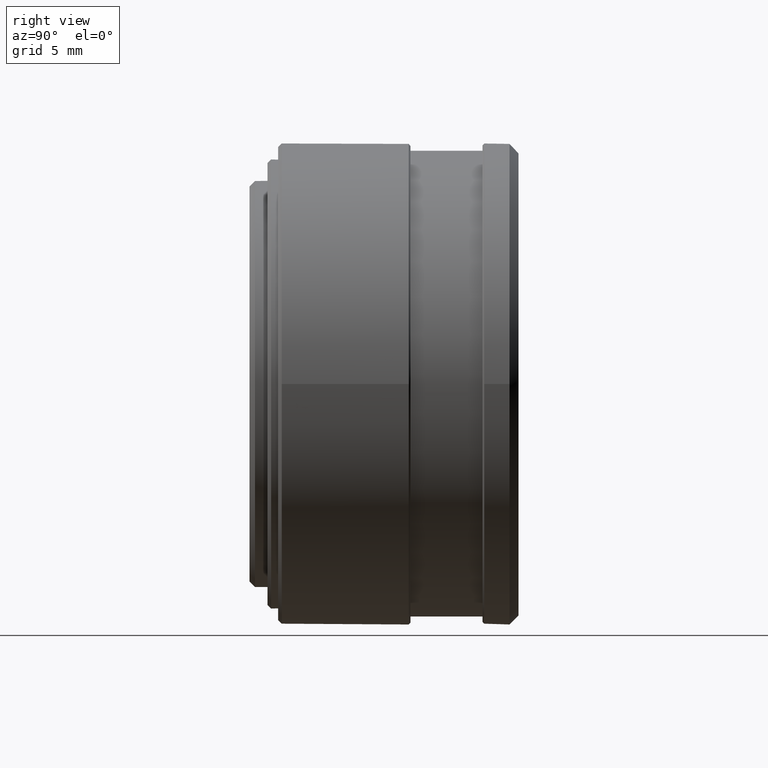
[diagram: clean part render]
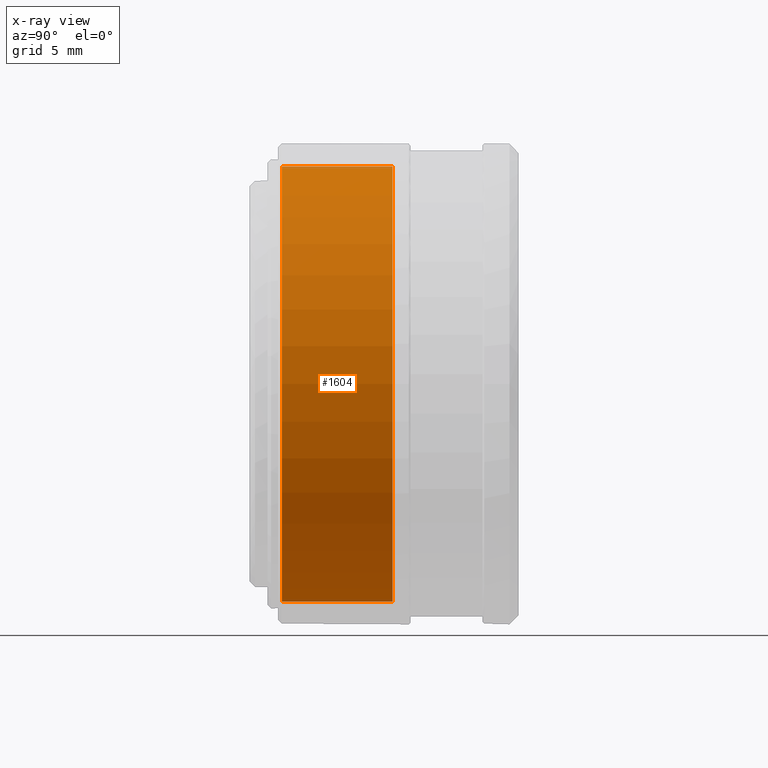
[diagram: x-ray — body ghosted, one internal face saturated and labeled with its STEP entity id]
A machine part, right view, then the same camera in x-ray: the body is ghosted and one INTERNAL B-rep face — a face not visible from any outside direction — is saturated and labeled: STEP entity #1604.
In plain terms, the highlighted cylindrical surface (bore or boss wall) has radius 12.095 mm, axis along (0, 1, 0).
Its self-contained STEP definition (entity closure, byte-faithful):
#73 = CARTESIAN_POINT ( 'NONE',  ( 12.09500000000000242, 0.1999993410000001082, 0.000000000000000000 ) ) ;
#99 = DIRECTION ( 'NONE',  ( 0.000000000000000000, 0.000000000000000000, 1.000000000000000000 ) ) ;
#126 = CARTESIAN_POINT ( 'NONE',  ( 0.000000000000000000, 0.1999993410000122651, 0.000000000000000000 ) ) ;
#127 = AXIS2_PLACEMENT_3D ( 'NONE', #1064, #1600, #99 ) ;
#536 = DIRECTION ( 'NONE',  ( 1.000000000000000000, -1.006214914109118216E-15, 0.000000000000000000 ) ) ;
#538 = EDGE_LOOP ( 'NONE', ( #656 ) ) ;
#567 = CIRCLE ( 'NONE', #127, 12.09500000000000242 ) ;
#656 = ORIENTED_EDGE ( 'NONE', *, *, #1246, .F. ) ;
#658 = CIRCLE ( 'NONE', #996, 12.09500000000000242 ) ;
#690 = AXIS2_PLACEMENT_3D ( 'NONE', #959, #1096, #788 ) ;
#788 = DIRECTION ( 'NONE',  ( 0.000000000000000000, 0.000000000000000000, 1.000000000000000000 ) ) ;
#895 = VERTEX_POINT ( 'NONE', #1167 ) ;
#935 = DIRECTION ( 'NONE',  ( -0.000000000000000000, 1.000000000000000000, -0.000000000000000000 ) ) ;
#937 = ORIENTED_EDGE ( 'NONE', *, *, #1075, .T. ) ;
#942 = FACE_OUTER_BOUND ( 'NONE', #1710, .T. ) ;
#959 = CARTESIAN_POINT ( 'NONE',  ( 0.000000000000000000, 0.1999993410000001082, 0.000000000000000000 ) ) ;
#996 = AXIS2_PLACEMENT_3D ( 'NONE', #126, #935, #536 ) ;
#1064 = CARTESIAN_POINT ( 'NONE',  ( 0.000000000000000000, 6.361292002000001666, 0.000000000000000000 ) ) ;
#1075 = EDGE_CURVE ( 'NONE', #895, #895, #567, .T. ) ;
#1096 = DIRECTION ( 'NONE',  ( 0.000000000000000000, 1.000000000000000000, 0.000000000000000000 ) ) ;
#1167 = CARTESIAN_POINT ( 'NONE',  ( 0.000000000000000000, 6.361292002000001666, 12.09500000000000242 ) ) ;
#1208 = FACE_OUTER_BOUND ( 'NONE', #538, .T. ) ;
#1246 = EDGE_CURVE ( 'NONE', #1291, #1291, #658, .T. ) ;
#1291 = VERTEX_POINT ( 'NONE', #73 ) ;
#1600 = DIRECTION ( 'NONE',  ( 0.000000000000000000, 1.000000000000000000, 0.000000000000000000 ) ) ;
#1604 = ADVANCED_FACE ( 'NONE', ( #942, #1208 ), #1626, .F. ) ;
#1626 = CYLINDRICAL_SURFACE ( 'NONE', #690, 12.09500000000000242 ) ;
#1710 = EDGE_LOOP ( 'NONE', ( #937 ) ) ;